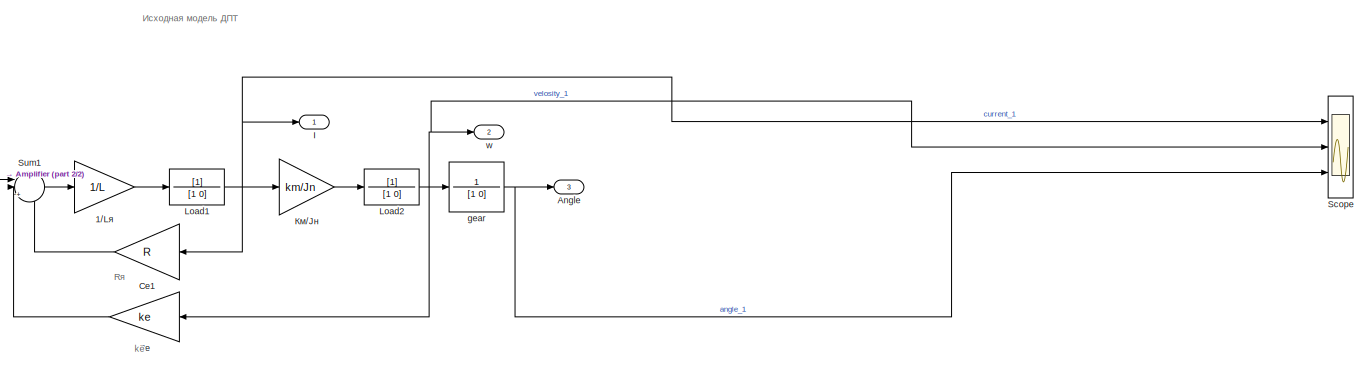
[diagram: root canvas - part 1/2, most of the canvas]
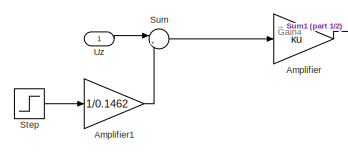
[diagram: root canvas - part 2/2, middle left region]
MODEL slx_173e748e3747
KIND model
CONFIG AbsTol = auto
CONFIG EnableMultiTasking = off
CONFIG FixedStep = auto
CONFIG MaxStep = auto
CONFIG MinStep = auto
CONFIG RelTol = 1e-3
CONFIG SampleTimeConstraint = Unconstrained
CONFIG SolverName = VariableStepAuto
CONFIG StartTime = 0.0
CONFIG StopTime = 0.2
BLOCK [Gain] 1//Lя
  Gain = 1/L
BLOCK [Gain] Amplifier
  Gain = ku
BLOCK [Gain] Amplifier1
  Gain = 1/0.1462
BLOCK [Outport] Angle
  Port = 3
BLOCK [Gain] Ce
  Gain = ke
BLOCK [Gain] Ce1
  Gain = R
BLOCK [Outport] I
BLOCK [TransferFcn] Load1
  Denominator = [1 0]
BLOCK [TransferFcn] Load2
  Denominator = [1 0]
BLOCK [Scope] Scope
  Floating = off
  NumInputPorts = 3
  Ports = [3]
  ScopeSpecificationString = Simulink.scopes.TimeScopeBlockCfg('CurrentConfiguration', extmgr.ConfigurationSet(extmgr.Configuration('Core','General UI',true,'FigureColor',[1 1 1]),extmgr.Configuration('Core','Source UI',true),extmgr.Configuration('Sources','WiredSimulink',true),extmgr.Configuration('Visuals','Time Domain',true,'SerializedDisplays',{struct('MinYLimReal','-4.84733','MaxYLimReal','7.50348','YLabelReal','','MinYL...<+3578ch>
BLOCK [Step] Step
  SampleTime = 0
  Time = 0
BLOCK [Sum] Sum
  Inputs = |++
  Ports = [2, 1]
BLOCK [Sum] Sum1
  Inputs = ||+--
  Ports = [3, 1]
BLOCK [Inport] Uz
BLOCK [TransferFcn] gear
  Denominator = [1 0]
  Numerator = 1
BLOCK [Outport] w
  Port = 2
BLOCK [Gain] Км//Jн
  Gain = km/Jn
ANNOTATION (root): Rя
ANNOTATION (root): Исходная модель ДПТ
ANNOTATION (root): Gain4
ANNOTATION (root): kе
LINE 1//Lя:1 -> Load1:1
LINE Amplifier1:1 -> Sum:2
LINE Amplifier:1 -> Sum1:1
LINE Ce1:1 -> Sum1:3
LINE Ce:1 -> Sum1:2
NET Load1:1 -> Ce1:1, I:1, Scope:1, Км//Jн:1
NET Load2:1 -> Ce:1, Scope:2, gear:1, w:1
LINE Step:1 -> Amplifier1:1
LINE Sum1:1 -> 1//Lя:1
LINE Sum:1 -> Amplifier:1
LINE Uz:1 -> Sum:1
NET gear:1 -> Angle:1, Scope:3
LINE Км//Jн:1 -> Load2:1
note: NET lines group one-source signal fan-out (src -> all destinations, sorted); 1:1 wires keep LINE
